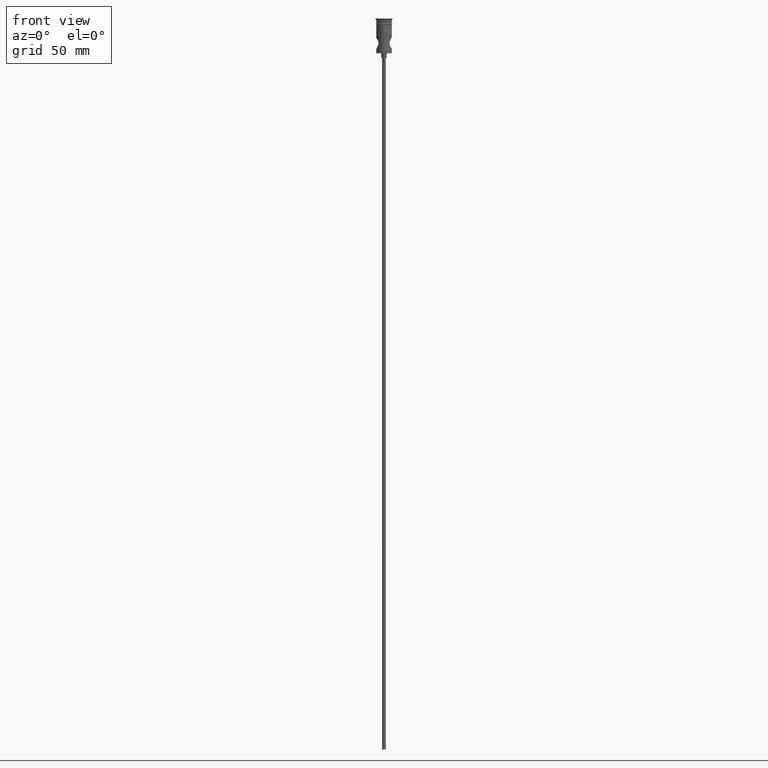
[diagram: clean part render]
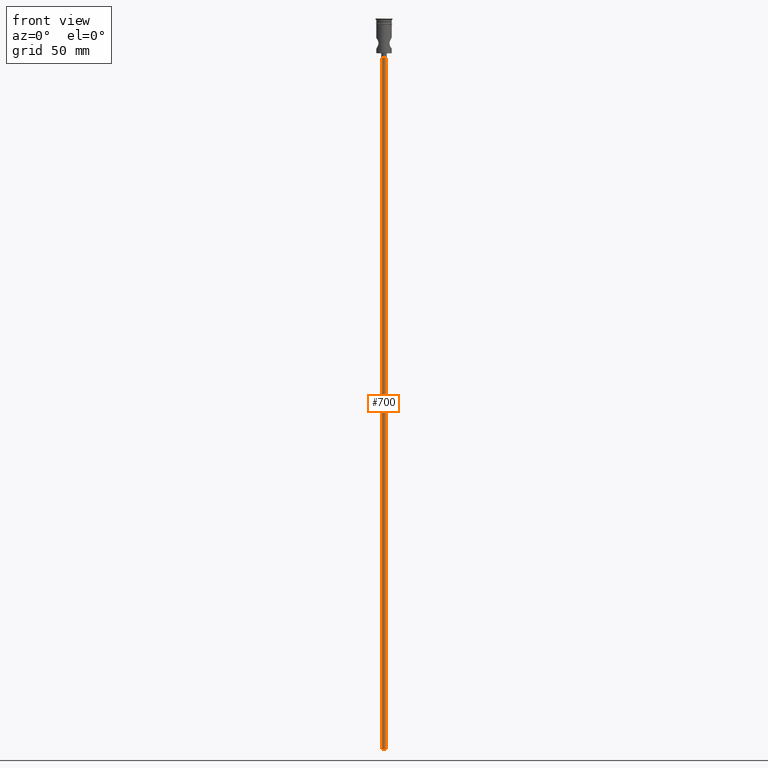
[diagram: same view with one face highlighted and labeled with its STEP entity id]
A machine part, front view. The second image highlights one B-rep face of the part: STEP entity #700.
In plain terms, the highlighted cylindrical surface (edge-blend (fillet) strip) has radius 1.25 mm, axis along (-0, -0, 1).
Its self-contained STEP definition (entity closure, byte-faithful):
#23 = DIRECTION ( 'NONE',  ( -1.000000000000000000, 0.000000000000000000, 0.000000000000000000 ) ) ;
#28 = FACE_OUTER_BOUND ( 'NONE', #1212, .T. ) ;
#30 = CARTESIAN_POINT ( 'NONE',  ( -1.250000000000000000, 1.530808498934191571E-16, -472.5000000000000568 ) ) ;
#45 = VERTEX_POINT ( 'NONE', #64 ) ;
#64 = CARTESIAN_POINT ( 'NONE',  ( 1.250000000000000000, 0.000000000000000000, -472.5000000000000568 ) ) ;
#89 = EDGE_CURVE ( 'NONE', #263, #1417, #643, .T. ) ;
#90 = ORIENTED_EDGE ( 'NONE', *, *, #89, .F. ) ;
#189 = CARTESIAN_POINT ( 'NONE',  ( 1.250000000000000000, 0.000000000000000000, -25.50000000000000000 ) ) ;
#192 = AXIS2_PLACEMENT_3D ( 'NONE', #1348, #593, #1037 ) ;
#218 = LINE ( 'NONE', #1331, #972 ) ;
#263 = VERTEX_POINT ( 'NONE', #30 ) ;
#274 = CARTESIAN_POINT ( 'NONE',  ( 0.000000000000000000, 0.000000000000000000, -25.50000000000000000 ) ) ;
#369 = CYLINDRICAL_SURFACE ( 'NONE', #192, 1.250000000000000000 ) ;
#483 = EDGE_CURVE ( 'NONE', #45, #263, #901, .T. ) ;
#528 = ORIENTED_EDGE ( 'NONE', *, *, #483, .F. ) ;
#537 = CARTESIAN_POINT ( 'NONE',  ( -1.250000000000000000, 1.530808498934191571E-16, -472.5000000000000568 ) ) ;
#587 = EDGE_CURVE ( 'NONE', #45, #1118, #218, .T. ) ;
#589 = ORIENTED_EDGE ( 'NONE', *, *, #587, .T. ) ;
#593 = DIRECTION ( 'NONE',  ( -0.000000000000000000, -0.000000000000000000, 1.000000000000000000 ) ) ;
#643 = LINE ( 'NONE', #537, #1032 ) ;
#700 = ADVANCED_FACE ( 'NONE', ( #28 ), #369, .T. ) ;
#719 = EDGE_CURVE ( 'NONE', #1118, #1417, #993, .T. ) ;
#744 = AXIS2_PLACEMENT_3D ( 'NONE', #1225, #908, #1238 ) ;
#797 = DIRECTION ( 'NONE',  ( 0.000000000000000000, 0.000000000000000000, -1.000000000000000000 ) ) ;
#901 = CIRCLE ( 'NONE', #744, 1.250000000000000000 ) ;
#908 = DIRECTION ( 'NONE',  ( 0.000000000000000000, 0.000000000000000000, -1.000000000000000000 ) ) ;
#959 = DIRECTION ( 'NONE',  ( -0.000000000000000000, -0.000000000000000000, 1.000000000000000000 ) ) ;
#972 = VECTOR ( 'NONE', #959, 1000.000000000000000 ) ;
#993 = CIRCLE ( 'NONE', #1084, 1.250000000000000000 ) ;
#1001 = CARTESIAN_POINT ( 'NONE',  ( -1.250000000000000000, 1.530808498934191571E-16, -25.50000000000000000 ) ) ;
#1032 = VECTOR ( 'NONE', #1079, 1000.000000000000000 ) ;
#1037 = DIRECTION ( 'NONE',  ( 1.000000000000000000, 0.000000000000000000, 0.000000000000000000 ) ) ;
#1079 = DIRECTION ( 'NONE',  ( -0.000000000000000000, -0.000000000000000000, 1.000000000000000000 ) ) ;
#1084 = AXIS2_PLACEMENT_3D ( 'NONE', #274, #797, #23 ) ;
#1118 = VERTEX_POINT ( 'NONE', #189 ) ;
#1212 = EDGE_LOOP ( 'NONE', ( #90, #528, #589, #1314 ) ) ;
#1225 = CARTESIAN_POINT ( 'NONE',  ( 0.000000000000000000, 0.000000000000000000, -472.5000000000000568 ) ) ;
#1238 = DIRECTION ( 'NONE',  ( -1.000000000000000000, 0.000000000000000000, 0.000000000000000000 ) ) ;
#1314 = ORIENTED_EDGE ( 'NONE', *, *, #719, .T. ) ;
#1331 = CARTESIAN_POINT ( 'NONE',  ( 1.250000000000000000, 0.000000000000000000, -472.5000000000000568 ) ) ;
#1348 = CARTESIAN_POINT ( 'NONE',  ( 0.000000000000000000, 0.000000000000000000, -472.5000000000000568 ) ) ;
#1417 = VERTEX_POINT ( 'NONE', #1001 ) ;